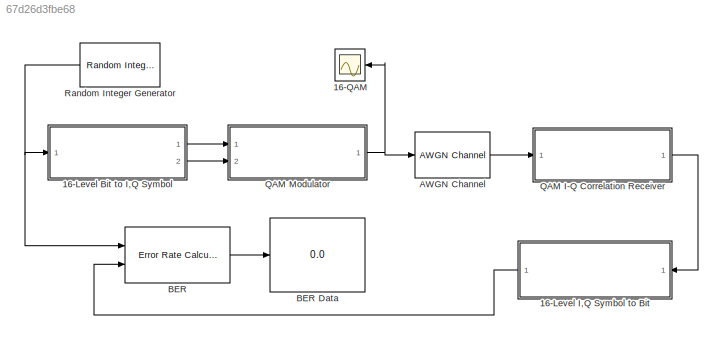
MODEL slx_67d26d3fbe68
KIND model
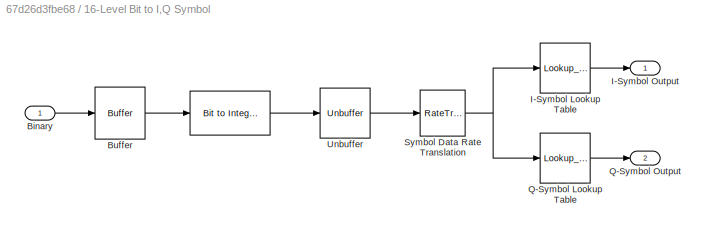
BLOCK [SubSystem] 16-Level Bit to I,Q Symbol
  Ports = [1, 2]
  RequestExecContextInheritance = off
BLOCK [Reference] 16-Level Bit to I,Q Symbol/   REF=commutil2/Bit to Integer
Converter
  Ports = [1, 1]
  SourceBlock = commutil2/Bit to Integer\nConverter
  SourceType = Bit to Integer Converter
  bitOrder = MSB first
  nbits = 4
  outDtype = Inherit via internal rule
  outDtypeSigned = Inherit via internal rule
  signedOutputValues = Unsigned
BLOCK [Inport] 16-Level Bit to I,Q Symbol/Binary
  IconDisplay = Port number
BLOCK [Buffer] 16-Level Bit to I,Q Symbol/Buffer
  N = 4
  TreatMby1Signals = One channel
BLOCK [Lookup_n-D] 16-Level Bit to I,Q Symbol/I-Symbol Lookup Table
  BreakpointsForDimension1 = [0,1,2,3,4,5,6,7,8,9,10,11,12,13,14,15]
  InternalRulePriority = Speed
  NumberOfTableDimensions = 1
  Ports = [1, 1]
  RndMeth = Simplest
  Table = [-1,-3,-1,-3,1,1,3,3,-1,-1,-3,-3,1,3,1,3]
BLOCK [Outport] 16-Level Bit to I,Q Symbol/I-Symbol Output
  IconDisplay = Port number
BLOCK [Lookup_n-D] 16-Level Bit to I,Q Symbol/Q-Symbol Lookup Table
  BreakpointsForDimension1 = [0,1,2,3,4,5,6,7,8,9,10,11,12,13,14,15]
  InternalRulePriority = Speed
  NumberOfTableDimensions = 1
  Ports = [1, 1]
  RndMeth = Simplest
  Table = [1,1,3,3,1,3,1,3,-1,-3,-1,-3,-1,-1,-3,-3]
BLOCK [Outport] 16-Level Bit to I,Q Symbol/Q-Symbol Output
  IconDisplay = Port number
  Port = 2
BLOCK [RateTransition] 16-Level Bit to I,Q Symbol/Symbol Data Rate Translation
  OutPortSampleTime = 4e-3
BLOCK [Unbuffer] 16-Level Bit to I,Q Symbol/Unbuffer
  Ports = [1, 1]
  SampleBasedProcessing = Same as frame based
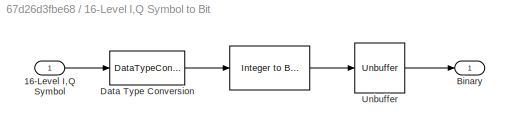
BLOCK [SubSystem] 16-Level I,Q Symbol to Bit
  Ports = [1, 1]
  RequestExecContextInheritance = off
BLOCK [Reference] 16-Level I,Q Symbol to Bit/   REF=commutil2/Integer to Bit
Converter
  Ports = [1, 1]
  SourceBlock = commutil2/Integer to Bit\nConverter
  SourceType = Integer to Bit Converter
  bitOrder = MSB first
  nbits = 4
  outDtype = double
  signedInputValues = Unsigned
BLOCK [Inport] 16-Level I,Q Symbol to Bit/16-Level I,Q Symbol
  IconDisplay = Port number
BLOCK [Outport] 16-Level I,Q Symbol to Bit/Binary
  IconDisplay = Port number
BLOCK [DataTypeConversion] 16-Level I,Q Symbol to Bit/Data Type Conversion
  OutDataTypeStr = int8
  RndMeth = Nearest
  SaturateOnIntegerOverflow = off
BLOCK [Unbuffer] 16-Level I,Q Symbol to Bit/Unbuffer
  Ports = [1, 1]
  SampleBasedProcessing = Same as frame based
BLOCK [Scope] 16-QAM
  DataFormat = StructureWithTime
  Floating = off
  MaxDataPoints = 8001
  NumInputPorts = 1
  Ports = [1]
  SampleTime = 0
  ShowLegends = off
  TimeRange = 0.005
  YMax = 10
  YMin = -10
BLOCK [Reference] AWGN Channel  REF=commchan3/AWGN
Channel
  EbNodB = 50
  EsNodB = 20
  InputProcessing = Inherited (this choice will be removed - see release notes)
  Ports = [1, 1]
  Ps = 125
  SNRdB = 10
  SourceBlock = commchan3/AWGN\nChannel
  SourceType = AWGN Channel
  Tsym = 4e-3
  UserDataPersistent = on
  bitsPerSym = 4
  noiseMode = Signal to noise ratio  (Eb/No)
  seed = randseed
  variance = 0
BLOCK [Reference] BER  REF=commsink2/Error Rate
Calculation
  N = 16
  PMode = Port
  Ports = [2, 1]
  RsMode2 = off
  SourceBlock = commsink2/Error Rate\nCalculation
  SourceType = Error Rate Calculation
  WsName = ErrorVec
  cp_mode = Entire frame
  maxBits = 1e6
  numErr = 100
  st_delay = 0
  stop = off
  subframe = []
BLOCK [Display] BER Data
  Decimation = 1
  Format = long
  Ports = [1]
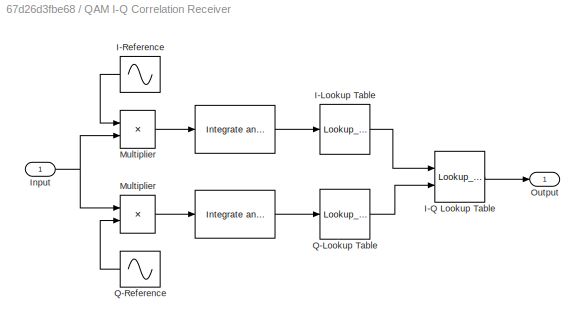
BLOCK [SubSystem] QAM I-Q Correlation Receiver
  Ports = [1, 1]
  RequestExecContextInheritance = off
BLOCK [Reference] QAM I-Q Correlation Receiver/   REF=commfilt2/Integrate
and Dump
  LockScale = off
  Ports = [1, 1]
  SourceBlock = commfilt2/Integrate\nand Dump
  SourceType = Integrate and Dump
  accumFracLength = 30
  accumMode = Inherit via internal rule
  accumWordLength = 32
  nodump = off
  obssamples = 2000
  offsetsamples = 0
  outputFracLength = 30
  outputMode = Same as accumulator
  outputWordLength = 32
  overflowMode = off
  roundingMode = Floor
BLOCK [Reference] QAM I-Q Correlation Receiver/    REF=commfilt2/Integrate
and Dump
  LockScale = off
  Ports = [1, 1]
  SourceBlock = commfilt2/Integrate\nand Dump
  SourceType = Integrate and Dump
  accumFracLength = 30
  accumMode = Inherit via internal rule
  accumWordLength = 32
  nodump = off
  obssamples = 2000
  offsetsamples = 0
  outputFracLength = 30
  outputMode = Same as accumulator
  outputWordLength = 32
  overflowMode = off
  roundingMode = Floor
BLOCK [Lookup_n-D] QAM I-Q Correlation Receiver/I-Lookup Table
  BreakpointsForDimension1 = [-75000,-25000,25000,75000]
  InternalRulePriority = Speed
  InterpMethod = Nearest
  NumberOfTableDimensions = 1
  Ports = [1, 1]
  RndMeth = Simplest
  Table = [-3, -1, 1, 3]
BLOCK [Lookup_n-D] QAM I-Q Correlation Receiver/I-Q Lookup Table
  BreakpointsForDimension1 = [-3, -1, 1, 3]
  BreakpointsForDimension2 = [-3, -1, 1, 3]
  InternalRulePriority = Speed
  Ports = [2, 1]
  RndMeth = Simplest
  Table = [11 10 1 3; 9 8 0 2; 14 12 4 5; 15 13 6 7]
BLOCK [Sin] QAM I-Q Correlation Receiver/I-Reference
  Amplitude = 5
  Frequency = 40000*pi
  Phase = pi/2
  Ports = [0, 1]
  SampleTime = 2e-6
BLOCK [Inport] QAM I-Q Correlation Receiver/Input
  IconDisplay = Port number
BLOCK [Product] QAM I-Q Correlation Receiver/Multiplier
  InputSameDT = off
  OutDataTypeStr = Inherit: Inherit via internal rule
  Ports = [2, 1]
  SaturateOnIntegerOverflow = off
BLOCK [Product] QAM I-Q Correlation Receiver/Multiplier 
  InputSameDT = off
  OutDataTypeStr = Inherit: Inherit via internal rule
  Ports = [2, 1]
  SaturateOnIntegerOverflow = off
BLOCK [Outport] QAM I-Q Correlation Receiver/Output
  IconDisplay = Port number
BLOCK [Lookup_n-D] QAM I-Q Correlation Receiver/Q-Lookup Table
  BreakpointsForDimension1 = [-75000,-25000,25000,75000]
  InternalRulePriority = Speed
  InterpMethod = Nearest
  NumberOfTableDimensions = 1
  Ports = [1, 1]
  RndMeth = Simplest
  Table = [-3, -1, 1, 3]
BLOCK [Sin] QAM I-Q Correlation Receiver/Q-Reference
  Amplitude = 5
  Frequency = 40000*pi
  Ports = [0, 1]
  SampleTime = 2e-6
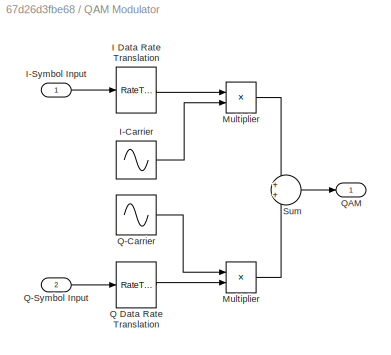
BLOCK [SubSystem] QAM Modulator
  Ports = [2, 1]
  RequestExecContextInheritance = off
BLOCK [Product] QAM Modulator/ Multiplier 
  InputSameDT = off
  OutDataTypeStr = Inherit: Inherit via internal rule
  Ports = [2, 1]
  SaturateOnIntegerOverflow = off
BLOCK [RateTransition] QAM Modulator/I Data Rate Translation
  OutPortSampleTime = 2e-6
BLOCK [Sin] QAM Modulator/I-Carrier
  Amplitude = 5
  Frequency = 40000*pi
  Phase = pi/2
  Ports = [0, 1]
  SampleTime = 2e-6
  VectorParams1D = off
BLOCK [Inport] QAM Modulator/I-Symbol Input
  IconDisplay = Port number
BLOCK [Product] QAM Modulator/Multiplier
  InputSameDT = off
  OutDataTypeStr = Inherit: Inherit via internal rule
  Ports = [2, 1]
  SaturateOnIntegerOverflow = off
BLOCK [RateTransition] QAM Modulator/Q Data Rate Translation
  OutPortSampleTime = 2e-6
BLOCK [Sin] QAM Modulator/Q-Carrier
  Amplitude = 5
  Frequency = 40000*pi
  Ports = [0, 1]
  SampleTime = 2e-6
  VectorParams1D = off
BLOCK [Inport] QAM Modulator/Q-Symbol Input
  IconDisplay = Port number
  Port = 2
BLOCK [Outport] QAM Modulator/QAM
  IconDisplay = Port number
BLOCK [Sum] QAM Modulator/Sum
  IconShape = round
  InputSameDT = off
  OutDataTypeStr = Inherit: Inherit via internal rule
  Ports = [2, 1]
  SaturateOnIntegerOverflow = off
BLOCK [Reference] Random Integer Generator  REF=commrandsrc2/Random Integer
Generator
  Ports = [0, 1]
  SourceBlock = commrandsrc2/Random Integer\nGenerator
  SourceType = Random Integer Generator
  Ts = 1e-3
  frameBased = off
  mul = 2
  orient = off
  outDataType = double
  sampPerFrame = 1
  seed = randseed
LINE 16-Level Bit to I,Q Symbol/ :1 -> 16-Level Bit to I,Q Symbol/Unbuffer:1
LINE 16-Level Bit to I,Q Symbol/Binary:1 -> 16-Level Bit to I,Q Symbol/Buffer:1
LINE 16-Level Bit to I,Q Symbol/Buffer:1 -> 16-Level Bit to I,Q Symbol/ :1
LINE 16-Level Bit to I,Q Symbol/I-Symbol Lookup Table:1 -> 16-Level Bit to I,Q Symbol/I-Symbol Output:1
LINE 16-Level Bit to I,Q Symbol/Q-Symbol Lookup Table:1 -> 16-Level Bit to I,Q Symbol/Q-Symbol Output:1
NET 16-Level Bit to I,Q Symbol/Symbol Data Rate Translation:1 -> 16-Level Bit to I,Q Symbol/I-Symbol Lookup Table:1, 16-Level Bit to I,Q Symbol/Q-Symbol Lookup Table:1
LINE 16-Level Bit to I,Q Symbol/Unbuffer:1 -> 16-Level Bit to I,Q Symbol/Symbol Data Rate Translation:1
LINE 16-Level Bit to I,Q Symbol:1 -> QAM Modulator:1
LINE 16-Level Bit to I,Q Symbol:2 -> QAM Modulator:2
LINE 16-Level I,Q Symbol to Bit/ :1 -> 16-Level I,Q Symbol to Bit/Unbuffer:1
LINE 16-Level I,Q Symbol to Bit/16-Level I,Q Symbol:1 -> 16-Level I,Q Symbol to Bit/Data Type Conversion:1
LINE 16-Level I,Q Symbol to Bit/Data Type Conversion:1 -> 16-Level I,Q Symbol to Bit/ :1
LINE 16-Level I,Q Symbol to Bit/Unbuffer:1 -> 16-Level I,Q Symbol to Bit/Binary:1
LINE 16-Level I,Q Symbol to Bit:1 -> BER:2
LINE AWGN Channel:1 -> QAM I-Q Correlation Receiver:1
LINE BER:1 -> BER Data:1
LINE QAM I-Q Correlation Receiver/  :1 -> QAM I-Q Correlation Receiver/Q-Lookup Table:1
LINE QAM I-Q Correlation Receiver/ :1 -> QAM I-Q Correlation Receiver/I-Lookup Table:1
LINE QAM I-Q Correlation Receiver/I-Lookup Table:1 -> QAM I-Q Correlation Receiver/I-Q Lookup Table:1
LINE QAM I-Q Correlation Receiver/I-Q Lookup Table:1 -> QAM I-Q Correlation Receiver/Output:1
LINE QAM I-Q Correlation Receiver/I-Reference:1 -> QAM I-Q Correlation Receiver/Multiplier :1
NET QAM I-Q Correlation Receiver/Input:1 -> QAM I-Q Correlation Receiver/Multiplier :2, QAM I-Q Correlation Receiver/Multiplier:1
LINE QAM I-Q Correlation Receiver/Multiplier :1 -> QAM I-Q Correlation Receiver/ :1
LINE QAM I-Q Correlation Receiver/Multiplier:1 -> QAM I-Q Correlation Receiver/  :1
LINE QAM I-Q Correlation Receiver/Q-Lookup Table:1 -> QAM I-Q Correlation Receiver/I-Q Lookup Table:2
LINE QAM I-Q Correlation Receiver/Q-Reference:1 -> QAM I-Q Correlation Receiver/Multiplier:2
LINE QAM I-Q Correlation Receiver:1 -> 16-Level I,Q Symbol to Bit:1
LINE QAM Modulator/ Multiplier :1 -> QAM Modulator/Sum:2
LINE QAM Modulator/I Data Rate Translation:1 -> QAM Modulator/Multiplier:1
LINE QAM Modulator/I-Carrier:1 -> QAM Modulator/Multiplier:2
LINE QAM Modulator/I-Symbol Input:1 -> QAM Modulator/I Data Rate Translation:1
LINE QAM Modulator/Multiplier:1 -> QAM Modulator/Sum:1
LINE QAM Modulator/Q Data Rate Translation:1 -> QAM Modulator/ Multiplier :2
LINE QAM Modulator/Q-Carrier:1 -> QAM Modulator/ Multiplier :1
LINE QAM Modulator/Q-Symbol Input:1 -> QAM Modulator/Q Data Rate Translation:1
LINE QAM Modulator/Sum:1 -> QAM Modulator/QAM:1
NET QAM Modulator:1 -> 16-QAM:1, AWGN Channel:1
NET Random Integer Generator:1 -> 16-Level Bit to I,Q Symbol:1, BER:1
note: NET lines group one-source signal fan-out (src -> all destinations, sorted); 1:1 wires keep LINE
